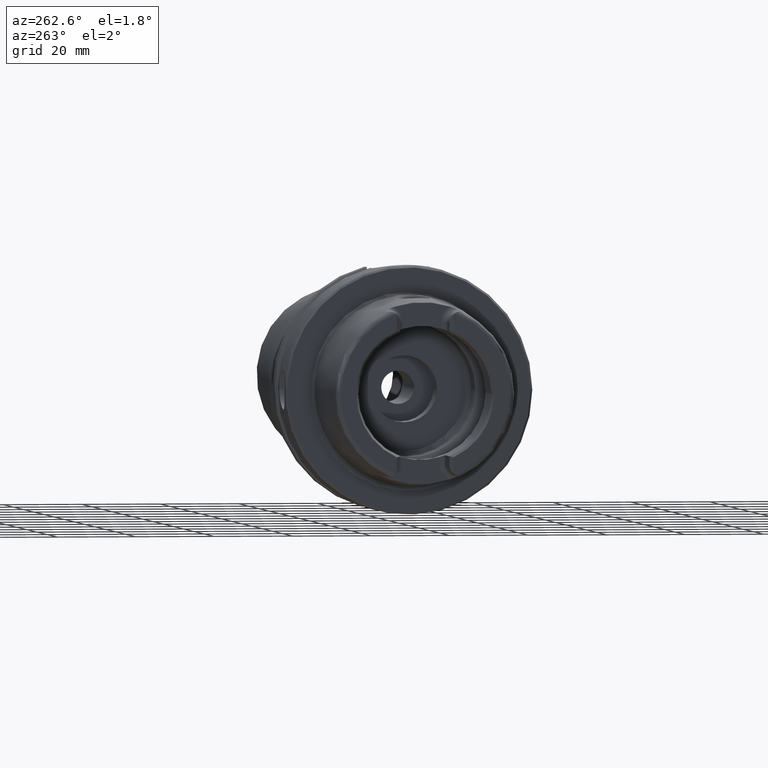
[diagram: clean part render]
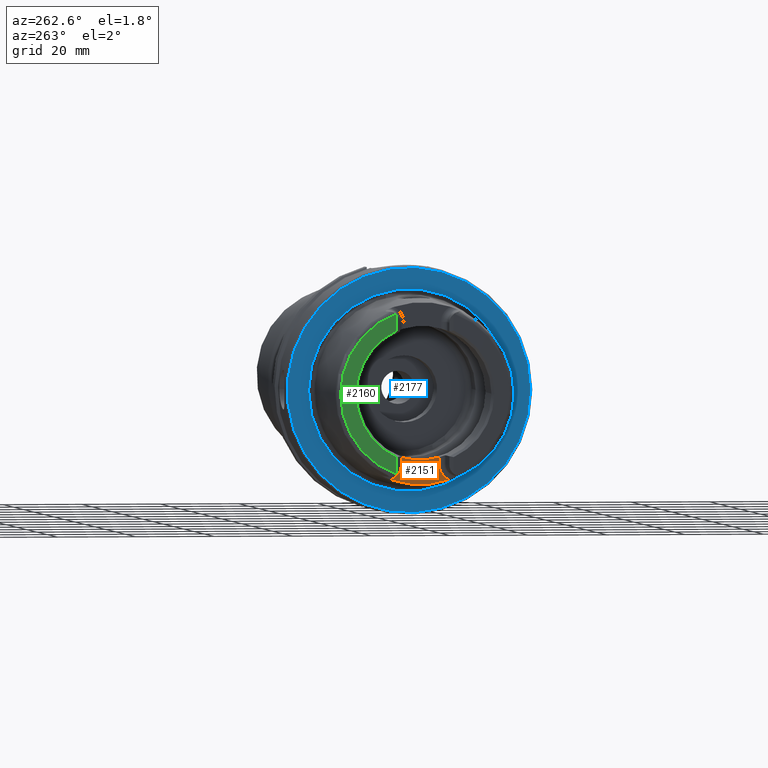
[diagram: same view with three faces highlighted in distinct colors, each labeled with its STEP entity id]
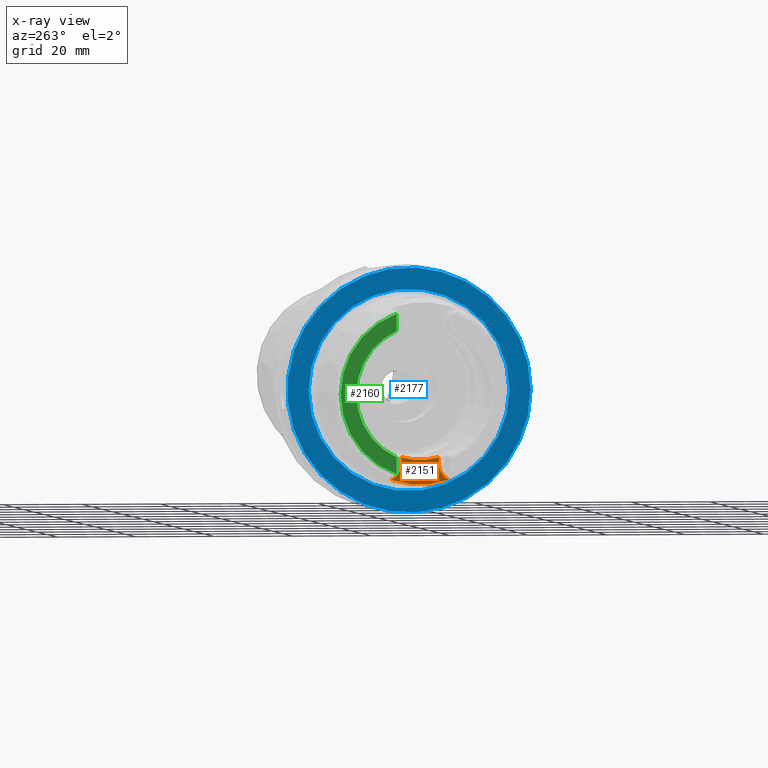
[diagram: x-ray of the same camera — body ghosted, the three highlighted faces saturated]
A machine part, auxiliary view with three faces highlighted in distinct colors.
The next image is the same camera in x-ray (body ghosted, the three faces saturated) — at least one of them is partly hidden behind the body in this view.
Their STEP definitions:

[orange] entity #2151 — the highlighted planar face has unit normal (-1, 0, 0).
#145=PLANE('',#2400);
#319=FACE_OUTER_BOUND('',#451,.T.);
#451=EDGE_LOOP('',(#1892,#1893,#1894,#1895,#1896,#1897));
#581=LINE('',#4530,#689);
#583=LINE('',#4539,#691);
#689=VECTOR('',#2949,10.);
#691=VECTOR('',#2961,10.);
#742=CIRCLE('',#2289,23.2184268537074);
#794=CIRCLE('',#2395,4.38);
#796=CIRCLE('',#2401,17.);
#797=CIRCLE('',#2402,4.38);
#921=VERTEX_POINT('',#3625);
#922=VERTEX_POINT('',#3636);
#1023=VERTEX_POINT('',#4515);
#1024=VERTEX_POINT('',#4519);
#1025=VERTEX_POINT('',#4536);
#1026=VERTEX_POINT('',#4538);
#1163=EDGE_CURVE('',#921,#922,#742,.T.);
#1325=EDGE_CURVE('',#1023,#921,#794,.T.);
#1327=EDGE_CURVE('',#1024,#1023,#581,.T.);
#1330=EDGE_CURVE('',#1025,#1024,#796,.T.);
#1331=EDGE_CURVE('',#1026,#1025,#583,.T.);
#1332=EDGE_CURVE('',#922,#1026,#797,.T.);
#1892=ORIENTED_EDGE('',*,*,#1325,.F.);
#1893=ORIENTED_EDGE('',*,*,#1327,.F.);
#1894=ORIENTED_EDGE('',*,*,#1330,.F.);
#1895=ORIENTED_EDGE('',*,*,#1331,.F.);
#1896=ORIENTED_EDGE('',*,*,#1332,.F.);
#1897=ORIENTED_EDGE('',*,*,#1163,.F.);
#2151=ADVANCED_FACE('',(#319),#145,.T.);
#2289=AXIS2_PLACEMENT_3D('',#3637,#2679,#2680);
#2395=AXIS2_PLACEMENT_3D('',#4517,#2945,#2946);
#2400=AXIS2_PLACEMENT_3D('',#4535,#2957,#2958);
#2401=AXIS2_PLACEMENT_3D('',#4537,#2959,#2960);
#2402=AXIS2_PLACEMENT_3D('',#4540,#2962,#2963);
#2679=DIRECTION('center_axis',(1.,0.,0.));
#2680=DIRECTION('ref_axis',(0.,1.,0.));
#2945=DIRECTION('center_axis',(-1.,0.,0.));
#2946=DIRECTION('ref_axis',(0.,0.522806483831831,-0.852451394780604));
#2949=DIRECTION('',(0.,0.,-1.));
#2957=DIRECTION('center_axis',(-1.,0.,0.));
#2958=DIRECTION('ref_axis',(0.,0.,1.));
#2959=DIRECTION('center_axis',(-1.,0.,0.));
#2960=DIRECTION('ref_axis',(0.,1.,0.));
#2961=DIRECTION('',(0.,0.,1.));
#2962=DIRECTION('center_axis',(-1.,0.,0.));
#2963=DIRECTION('ref_axis',(0.,-0.522806483831831,-0.852451394780604));
#3625=CARTESIAN_POINT('',(-22.,-7.4031250016059,-22.0065691504051));
#3636=CARTESIAN_POINT('',(-22.,7.4031250016059,-22.0065691504051));
#3637=CARTESIAN_POINT('Origin',(-22.,0.,0.));
#4515=CARTESIAN_POINT('',(-22.,-4.77,-17.99));
#4517=CARTESIAN_POINT('Origin',(-22.,-9.15,-17.99));
#4519=CARTESIAN_POINT('',(-22.,-4.77,-16.3170800083839));
#4530=CARTESIAN_POINT('',(-22.,-4.77,-17.8001077154309));
#4535=CARTESIAN_POINT('Origin',(-22.,0.,-17.6102154308617));
#4536=CARTESIAN_POINT('',(-22.,4.77,-16.3170800083839));
#4537=CARTESIAN_POINT('Origin',(-22.,0.,0.));
#4538=CARTESIAN_POINT('',(-22.,4.77,-17.99));
#4539=CARTESIAN_POINT('',(-22.,4.77,-14.3051077154309));
#4540=CARTESIAN_POINT('Origin',(-22.,9.15,-17.99));

[blue] entity #2177 — the highlighted planar face has unit normal (-1, 0, 0).
#110=FACE_BOUND('',#481,.T.);
#154=PLANE('',#2458);
#345=FACE_OUTER_BOUND('',#480,.T.);
#480=EDGE_LOOP('',(#2020));
#481=EDGE_LOOP('',(#2021));
#827=CIRCLE('',#2457,25.5879092835167);
#828=CIRCLE('',#2459,31.);
#1043=VERTEX_POINT('',#4627);
#1044=VERTEX_POINT('',#4631);
#1370=EDGE_CURVE('',#1043,#1043,#827,.T.);
#1371=EDGE_CURVE('',#1044,#1044,#828,.T.);
#2020=ORIENTED_EDGE('',*,*,#1371,.F.);
#2021=ORIENTED_EDGE('',*,*,#1370,.T.);
#2177=ADVANCED_FACE('',(#345,#110),#154,.T.);
#2457=AXIS2_PLACEMENT_3D('',#4629,#3079,#3080);
#2458=AXIS2_PLACEMENT_3D('',#4630,#3081,#3082);
#2459=AXIS2_PLACEMENT_3D('',#4632,#3083,#3084);
#3079=DIRECTION('center_axis',(1.,0.,0.));
#3080=DIRECTION('ref_axis',(0.,0.,-1.));
#3081=DIRECTION('center_axis',(-1.,0.,0.));
#3082=DIRECTION('ref_axis',(0.,0.,1.));
#3083=DIRECTION('center_axis',(1.,0.,0.));
#3084=DIRECTION('ref_axis',(0.,0.,-1.));
#4627=CARTESIAN_POINT('',(-3.55618312575245E-16,-25.5879092835167,-3.13361512009315E-15));
#4629=CARTESIAN_POINT('Origin',(0.,0.,0.));
#4630=CARTESIAN_POINT('Origin',(0.,31.,0.));
#4631=CARTESIAN_POINT('',(-5.89805981832114E-16,-31.,-3.7964050773568E-15));
#4632=CARTESIAN_POINT('Origin',(0.,0.,0.));

[green] entity #2160 — the highlighted planar face has unit normal (-1, 0, 0).
#148=PLANE('',#2421);
#328=FACE_OUTER_BOUND('',#460,.T.);
#460=EDGE_LOOP('',(#1943,#1944,#1945,#1946,#1947,#1948));
#510=LINE('',#3333,#618);
#520=LINE('',#3426,#628);
#618=VECTOR('',#2618,10.);
#628=VECTOR('',#2656,10.);
#733=CIRCLE('',#2269,2.88);
#739=CIRCLE('',#2284,2.88);
#807=CIRCLE('',#2420,17.5773502691896);
#808=CIRCLE('',#2422,21.5760400159857);
#885=VERTEX_POINT('',#3326);
#888=VERTEX_POINT('',#3331);
#891=VERTEX_POINT('',#3341);
#906=VERTEX_POINT('',#3423);
#907=VERTEX_POINT('',#3425);
#912=VERTEX_POINT('',#3444);
#1121=EDGE_CURVE('',#888,#885,#510,.T.);
#1125=EDGE_CURVE('',#891,#885,#733,.T.);
#1143=EDGE_CURVE('',#906,#907,#520,.T.);
#1150=EDGE_CURVE('',#906,#912,#739,.T.);
#1345=EDGE_CURVE('',#907,#888,#807,.T.);
#1346=EDGE_CURVE('',#891,#912,#808,.T.);
#1943=ORIENTED_EDGE('',*,*,#1121,.F.);
#1944=ORIENTED_EDGE('',*,*,#1345,.F.);
#1945=ORIENTED_EDGE('',*,*,#1143,.F.);
#1946=ORIENTED_EDGE('',*,*,#1150,.T.);
#1947=ORIENTED_EDGE('',*,*,#1346,.F.);
#1948=ORIENTED_EDGE('',*,*,#1125,.T.);
#2160=ADVANCED_FACE('',(#328),#148,.T.);
#2269=AXIS2_PLACEMENT_3D('',#3342,#2626,#2627);
#2284=AXIS2_PLACEMENT_3D('',#3457,#2665,#2666);
#2420=AXIS2_PLACEMENT_3D('',#4573,#3000,#3001);
#2421=AXIS2_PLACEMENT_3D('',#4574,#3002,#3003);
#2422=AXIS2_PLACEMENT_3D('',#4575,#3004,#3005);
#2618=DIRECTION('',(0.,0.,-1.));
#2626=DIRECTION('center_axis',(-1.,0.,0.));
#2627=DIRECTION('ref_axis',(0.,-0.453346760926793,0.891334232685576));
#2656=DIRECTION('',(0.,1.58830189502884E-16,-1.));
#2665=DIRECTION('center_axis',(-1.,0.,0.));
#2666=DIRECTION('ref_axis',(0.,1.,0.));
#3000=DIRECTION('center_axis',(-1.,0.,0.));
#3001=DIRECTION('ref_axis',(0.,-1.,0.));
#3002=DIRECTION('center_axis',(-1.,0.,0.));
#3003=DIRECTION('ref_axis',(0.,0.,1.));
#3004=DIRECTION('center_axis',(1.,0.,0.));
#3005=DIRECTION('ref_axis',(0.,0.,-1.));
#3326=CARTESIAN_POINT('',(-32.,7.27,-20.1717424229271));
#3331=CARTESIAN_POINT('',(-32.,7.27,-16.003447831195));
#3333=CARTESIAN_POINT('',(-32.,7.27,-5.5));
#3341=CARTESIAN_POINT('',(-32.,7.39118810947246,-20.2705658801576));
#3342=CARTESIAN_POINT('Origin',(-32.,9.15,-17.99));
#3423=CARTESIAN_POINT('',(-32.,7.27,20.1717424229271));
#3425=CARTESIAN_POINT('',(-32.,7.27,16.003447831195));
#3426=CARTESIAN_POINT('',(-32.,7.27,8.995));
#3444=CARTESIAN_POINT('',(-32.,7.39118810947246,20.2705658801576));
#3457=CARTESIAN_POINT('Origin',(-32.,9.15,17.99));
#4573=CARTESIAN_POINT('Origin',(-32.,0.,0.));
#4574=CARTESIAN_POINT('Origin',(-32.,21.5760400159857,0.));
#4575=CARTESIAN_POINT('Origin',(-32.,0.,0.));